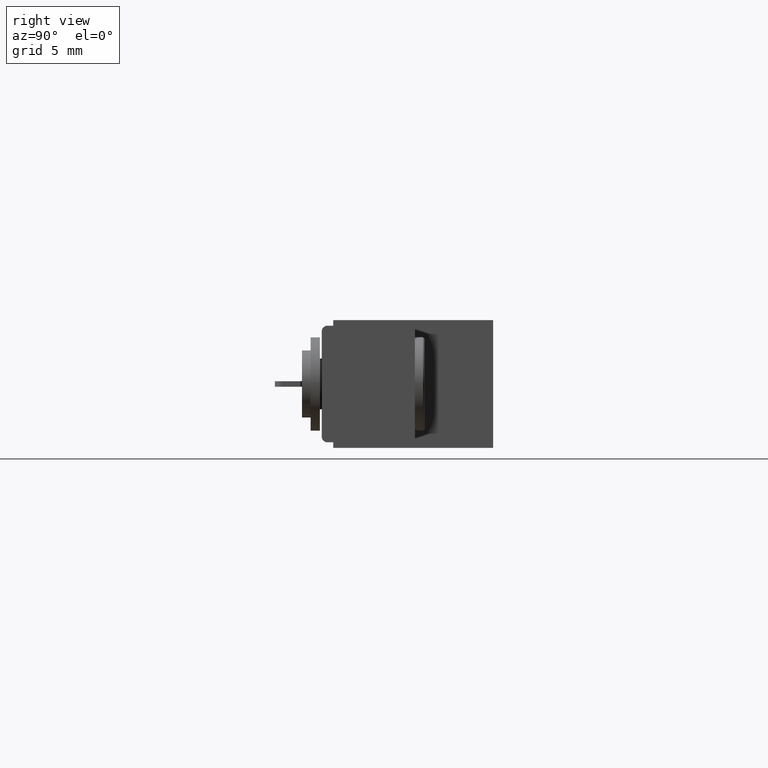
[diagram: clean part render]
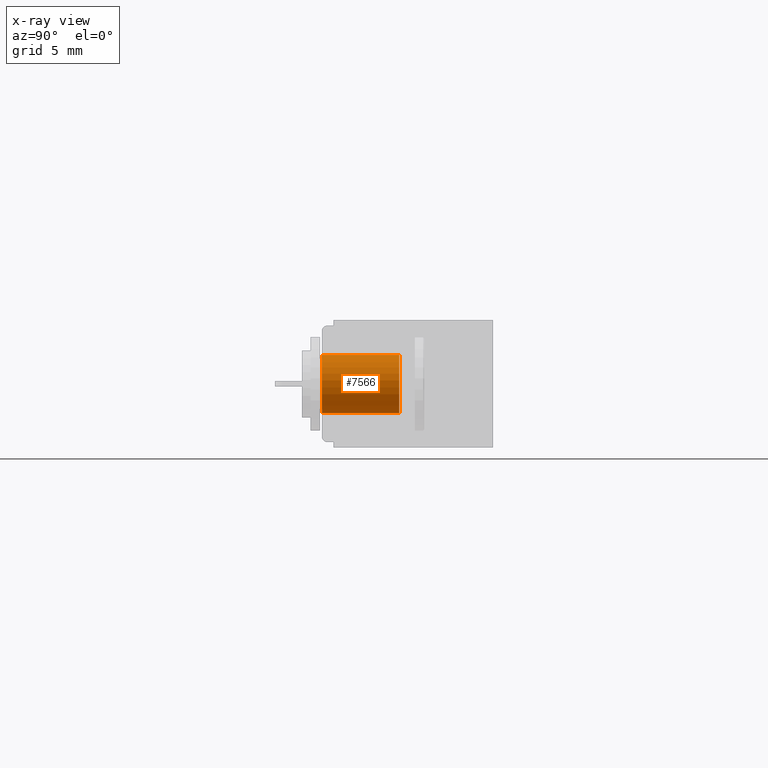
[diagram: x-ray — body ghosted, one internal face saturated and labeled with its STEP entity id]
A machine part, right view, then the same camera in x-ray: the body is ghosted and one INTERNAL B-rep face — a face not visible from any outside direction — is saturated and labeled: STEP entity #7566.
In plain terms, the highlighted cylindrical surface (edge-blend (fillet) strip) has radius 1.9812 mm, axis along (-0, -1, -0).
Its self-contained STEP definition (entity closure, byte-faithful):
#192 = EDGE_LOOP ( 'NONE', ( #1139, #526, #1152, #1182 ) ) ;
#526 = ORIENTED_EDGE ( 'NONE', *, *, #4754, .T. ) ;
#1139 = ORIENTED_EDGE ( 'NONE', *, *, #6610, .F. ) ;
#1152 = ORIENTED_EDGE ( 'NONE', *, *, #6646, .T. ) ;
#1182 = ORIENTED_EDGE ( 'NONE', *, *, #3331, .T. ) ;
#1275 = CARTESIAN_POINT ( 'NONE',  ( 1.687000000000000300, 0.2080000000000000200, -0.2495000000000001100 ) ) ;
#2573 = VECTOR ( 'NONE', #8411, 39.37007874015748100 ) ;
#2899 = AXIS2_PLACEMENT_3D ( 'NONE', #9312, #9290, #10004 ) ;
#3081 = CIRCLE ( 'NONE', #2899, 0.07800000000000009700 ) ;
#3331 = EDGE_CURVE ( 'NONE', #9759, #6932, #9014, .T. ) ;
#3650 = CYLINDRICAL_SURFACE ( 'NONE', #5842, 0.07800000000000009700 ) ;
#3735 = CARTESIAN_POINT ( 'NONE',  ( 1.687000000000000300, 0.0000000000000000000, -0.09349999999999991700 ) ) ;
#4754 = EDGE_CURVE ( 'NONE', #10584, #5757, #3081, .T. ) ;
#4930 = CARTESIAN_POINT ( 'NONE',  ( 1.687000000000000300, 0.2080000000000000200, -0.09349999999999991700 ) ) ;
#5757 = VERTEX_POINT ( 'NONE', #1275 ) ;
#5842 = AXIS2_PLACEMENT_3D ( 'NONE', #6637, #7026, #6346 ) ;
#6346 = DIRECTION ( 'NONE',  ( 0.0000000000000000000, 0.0000000000000000000, -1.000000000000000000 ) ) ;
#6362 = AXIS2_PLACEMENT_3D ( 'NONE', #7149, #7107, #7214 ) ;
#6452 = VECTOR ( 'NONE', #6625, 39.37007874015748100 ) ;
#6529 = CARTESIAN_POINT ( 'NONE',  ( 1.687000000000000300, 0.0000000000000000000, -0.2495000000000001100 ) ) ;
#6610 = EDGE_CURVE ( 'NONE', #10584, #6932, #9065, .T. ) ;
#6625 = DIRECTION ( 'NONE',  ( -0.0000000000000000000, -1.000000000000000000, -0.0000000000000000000 ) ) ;
#6637 = CARTESIAN_POINT ( 'NONE',  ( 1.687000000000000300, 0.4600000000000000200, -0.1715000000000000100 ) ) ;
#6646 = EDGE_CURVE ( 'NONE', #5757, #9759, #8574, .T. ) ;
#6670 = CARTESIAN_POINT ( 'NONE',  ( 1.687000000000000300, 0.4600000000000000200, -0.2495000000000001100 ) ) ;
#6932 = VERTEX_POINT ( 'NONE', #3735 ) ;
#7026 = DIRECTION ( 'NONE',  ( -0.0000000000000000000, -1.000000000000000000, -0.0000000000000000000 ) ) ;
#7107 = DIRECTION ( 'NONE',  ( 0.0000000000000000000, -1.000000000000000000, 0.0000000000000000000 ) ) ;
#7149 = CARTESIAN_POINT ( 'NONE',  ( 1.687000000000000300, 0.0000000000000000000, -0.1715000000000000100 ) ) ;
#7214 = DIRECTION ( 'NONE',  ( 0.0000000000000000000, 0.0000000000000000000, 1.000000000000000000 ) ) ;
#7566 = ADVANCED_FACE ( 'NONE', ( #8293 ), #3650, .F. ) ;
#8173 = CARTESIAN_POINT ( 'NONE',  ( 1.687000000000000300, 0.4600000000000000200, -0.09349999999999991700 ) ) ;
#8293 = FACE_OUTER_BOUND ( 'NONE', #192, .T. ) ;
#8411 = DIRECTION ( 'NONE',  ( -0.0000000000000000000, -1.000000000000000000, -0.0000000000000000000 ) ) ;
#8574 = LINE ( 'NONE', #6670, #6452 ) ;
#9014 = CIRCLE ( 'NONE', #6362, 0.07800000000000008300 ) ;
#9065 = LINE ( 'NONE', #8173, #2573 ) ;
#9290 = DIRECTION ( 'NONE',  ( -0.0000000000000000000, 1.000000000000000000, 0.0000000000000000000 ) ) ;
#9312 = CARTESIAN_POINT ( 'NONE',  ( 1.687000000000000300, 0.2080000000000000200, -0.1715000000000000100 ) ) ;
#9759 = VERTEX_POINT ( 'NONE', #6529 ) ;
#10004 = DIRECTION ( 'NONE',  ( 0.0000000000000000000, 0.0000000000000000000, -1.000000000000000000 ) ) ;
#10584 = VERTEX_POINT ( 'NONE', #4930 ) ;